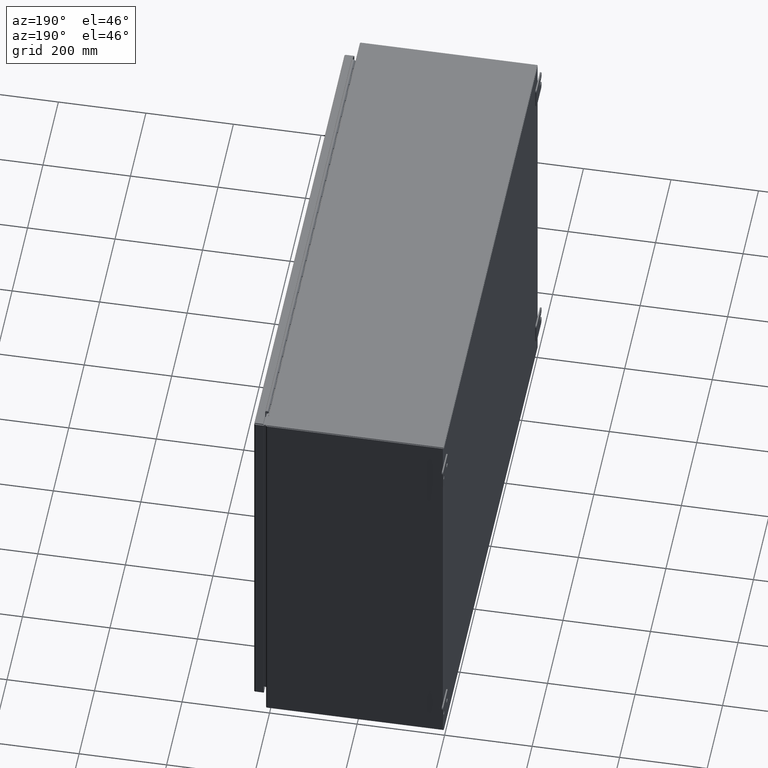
[diagram: clean part render]
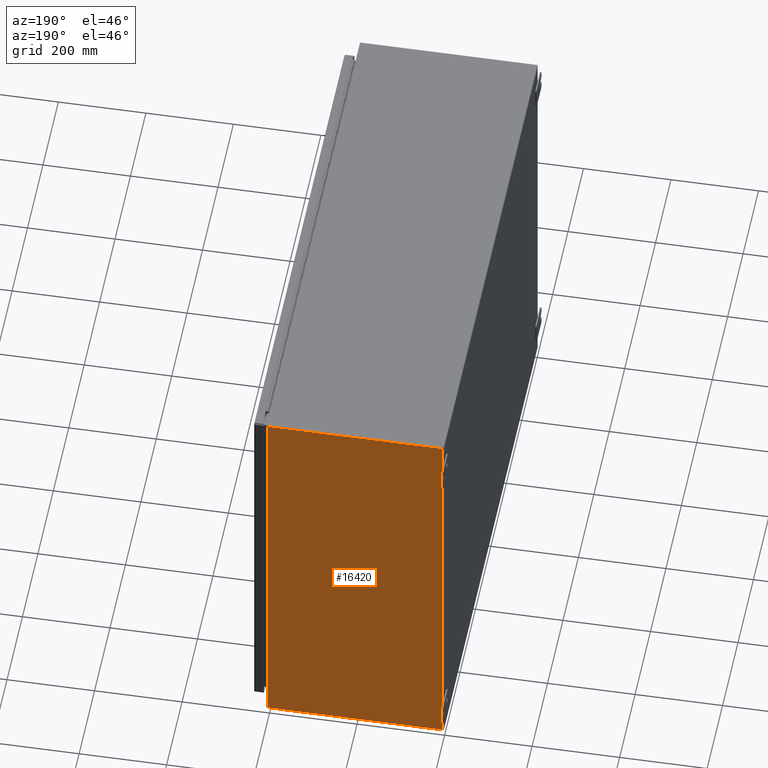
[diagram: same view with one face highlighted and labeled with its STEP entity id]
A machine part, auxiliary view. The second image highlights one B-rep face of the part: STEP entity #16420.
In plain terms, the highlighted planar face has unit normal (-0, -1, 0).
Its self-contained STEP definition (entity closure, byte-faithful):
#3753 = VERTEX_POINT ( 'NONE', #32040 ) ;
#5222 = LINE ( 'NONE', #45494, #92905 ) ;
#6477 = VECTOR ( 'NONE', #52918, 39.37007874015748143 ) ;
#9239 = LINE ( 'NONE', #87752, #6477 ) ;
#11655 = CARTESIAN_POINT ( 'NONE',  ( -17.92800000000000082, -0.1079999999999870230, 24.00000000000000355 ) ) ;
#16420 = ADVANCED_FACE ( 'NONE', ( #47569 ), #53465, .F. ) ;
#18826 = DIRECTION ( 'NONE',  ( 1.000000000000000000, 0.0000000000000000000, 0.0000000000000000000 ) ) ;
#19151 = EDGE_CURVE ( 'NONE', #94762, #58682, #5222, .T. ) ;
#23986 = EDGE_CURVE ( 'NONE', #51340, #58682, #78770, .T. ) ;
#24961 = EDGE_CURVE ( 'NONE', #51340, #3753, #9239, .T. ) ;
#30197 = EDGE_CURVE ( 'NONE', #94762, #3753, #112289, .T. ) ;
#30877 = DIRECTION ( 'NONE',  ( -1.000000000000000000, -0.0000000000000000000, -0.0000000000000000000 ) ) ;
#32040 = CARTESIAN_POINT ( 'NONE',  ( -17.92800000000000082, -15.89199999999999946, 24.00000000000000355 ) ) ;
#35795 = AXIS2_PLACEMENT_3D ( 'NONE', #54217, #79835, #53848 ) ;
#35911 = DIRECTION ( 'NONE',  ( -3.047576967496829904E-17, 1.000000000000000000, -1.064187573217432001E-32 ) ) ;
#43502 = EDGE_LOOP ( 'NONE', ( #101286, #108060, #45121, #113428 ) ) ;
#45121 = ORIENTED_EDGE ( 'NONE', *, *, #23986, .F. ) ;
#45224 = VECTOR ( 'NONE', #30877, 39.37007874015748143 ) ;
#45494 = CARTESIAN_POINT ( 'NONE',  ( 17.92799999999998306, -0.07199999999992755251, 23.99999999999999645 ) ) ;
#47569 = FACE_OUTER_BOUND ( 'NONE', #43502, .T. ) ;
#51340 = VERTEX_POINT ( 'NONE', #11655 ) ;
#52918 = DIRECTION ( 'NONE',  ( 3.047576967497040062E-17, -1.000000000000000000, -8.784330657611418981E-33 ) ) ;
#53465 = PLANE ( 'NONE',  #35795 ) ;
#53848 = DIRECTION ( 'NONE',  ( 0.0000000000000000000, 1.000000000000000000, 2.700463872494060183E-18 ) ) ;
#54217 = CARTESIAN_POINT ( 'NONE',  ( 17.92800000000000082, 2.622574073917693005E-14, 24.00000000000000355 ) ) ;
#56870 = CARTESIAN_POINT ( 'NONE',  ( -17.92800000000000082, -15.89199999999999946, 24.00000000000000355 ) ) ;
#58682 = VERTEX_POINT ( 'NONE', #71795 ) ;
#71795 = CARTESIAN_POINT ( 'NONE',  ( 17.92799999999999017, -0.1079999999999870230, 23.99999999999999645 ) ) ;
#78770 = LINE ( 'NONE', #88498, #110286 ) ;
#79835 = DIRECTION ( 'NONE',  ( 0.0000000000000000000, 2.700463872494060183E-18, -1.000000000000000000 ) ) ;
#87752 = CARTESIAN_POINT ( 'NONE',  ( -17.92800000000000082, -0.07200000000008267842, 24.00000000000000355 ) ) ;
#88498 = CARTESIAN_POINT ( 'NONE',  ( -17.92800000000000082, -0.1079999999999760041, 24.00000000000000355 ) ) ;
#92905 = VECTOR ( 'NONE', #35911, 39.37007874015748143 ) ;
#94762 = VERTEX_POINT ( 'NONE', #113348 ) ;
#101286 = ORIENTED_EDGE ( 'NONE', *, *, #30197, .F. ) ;
#108060 = ORIENTED_EDGE ( 'NONE', *, *, #19151, .T. ) ;
#110286 = VECTOR ( 'NONE', #18826, 39.37007874015748143 ) ;
#112289 = LINE ( 'NONE', #56870, #45224 ) ;
#113348 = CARTESIAN_POINT ( 'NONE',  ( 17.92799999999999017, -15.89199999999999946, 23.99999999999999645 ) ) ;
#113428 = ORIENTED_EDGE ( 'NONE', *, *, #24961, .T. ) ;